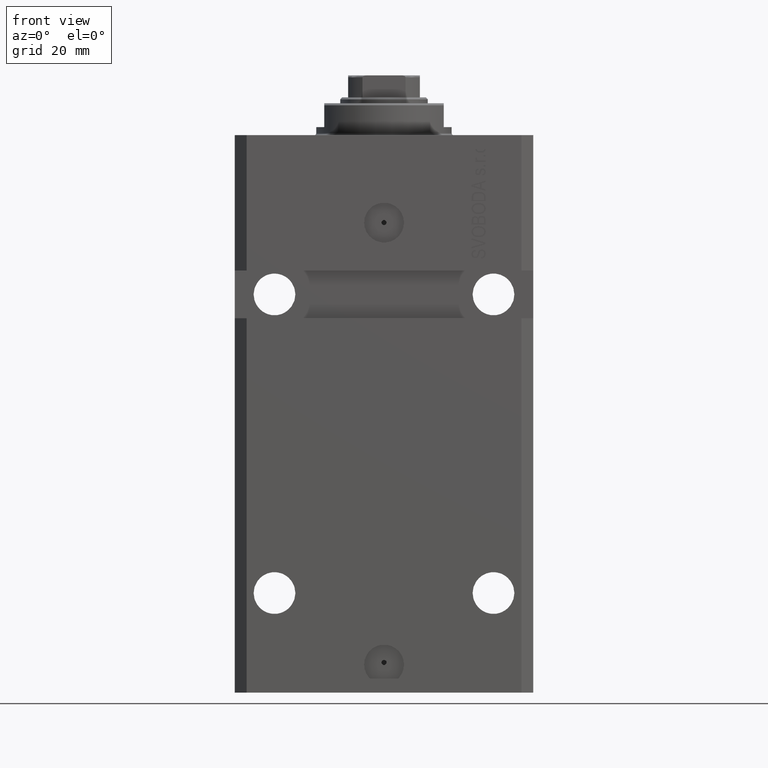
[diagram: clean part render]
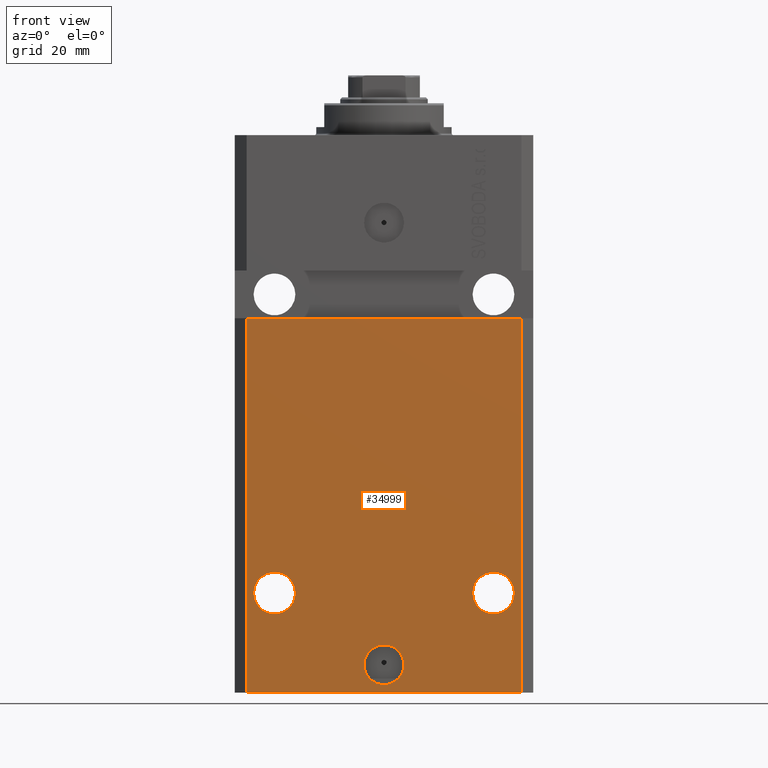
[diagram: same view with one face highlighted and labeled with its STEP entity id]
A machine part, front view. The second image highlights one B-rep face of the part: STEP entity #34999.
In plain terms, the highlighted planar face has unit normal (0, -1, 0).
Its self-contained STEP definition (entity closure, byte-faithful):
#111 = CARTESIAN_POINT ( 'NONE',  ( -34.49999999999998579, -27.49999999999999645, -140.0000000000000000 ) ) ;
#1057 = AXIS2_PLACEMENT_3D ( 'NONE', #40178, #32492, #29369 ) ;
#1148 = CARTESIAN_POINT ( 'NONE',  ( -37.50000000000000000, -27.50000000000000000, -46.00000000000000000 ) ) ;
#1710 = CARTESIAN_POINT ( 'NONE',  ( -32.75000000000001421, -27.50000000000000000, -114.9999999999999858 ) ) ;
#1973 = ORIENTED_EDGE ( 'NONE', *, *, #40157, .F. ) ;
#2005 = CARTESIAN_POINT ( 'NONE',  ( -34.49999999999998579, -27.49999999999999645, -140.0000000000000000 ) ) ;
#2021 = DIRECTION ( 'NONE',  ( 0.000000000000000000, 0.000000000000000000, 1.000000000000000000 ) ) ;
#2980 = VERTEX_POINT ( 'NONE', #28496 ) ;
#4014 = CIRCLE ( 'NONE', #42275, 5.000000000000006217 ) ;
#4164 = PLANE ( 'NONE',  #17685 ) ;
#4514 = DIRECTION ( 'NONE',  ( 1.000000000000000000, 0.000000000000000000, 0.000000000000000000 ) ) ;
#5545 = ORIENTED_EDGE ( 'NONE', *, *, #35936, .T. ) ;
#5588 = LINE ( 'NONE', #34812, #44801 ) ;
#7244 = AXIS2_PLACEMENT_3D ( 'NONE', #16963, #35641, #46211 ) ;
#7364 = DIRECTION ( 'NONE',  ( -1.000000000000000000, 0.000000000000000000, 0.000000000000000000 ) ) ;
#7464 = VERTEX_POINT ( 'NONE', #24071 ) ;
#7749 = FACE_BOUND ( 'NONE', #39373, .T. ) ;
#8972 = ORIENTED_EDGE ( 'NONE', *, *, #41030, .F. ) ;
#9198 = EDGE_CURVE ( 'NONE', #32117, #43630, #33531, .T. ) ;
#10006 = DIRECTION ( 'NONE',  ( 1.000000000000000000, 0.000000000000000000, 0.000000000000000000 ) ) ;
#10614 = EDGE_LOOP ( 'NONE', ( #1973, #24566 ) ) ;
#11483 = EDGE_CURVE ( 'NONE', #35458, #7464, #24493, .T. ) ;
#11514 = CARTESIAN_POINT ( 'NONE',  ( -34.49999999999998579, -27.49999999999999645, -140.0000000000000000 ) ) ;
#11586 = LINE ( 'NONE', #111, #37592 ) ;
#11703 = DIRECTION ( 'NONE',  ( 1.176083712526788232E-16, -1.000000000000000000, 0.000000000000000000 ) ) ;
#11825 = CARTESIAN_POINT ( 'NONE',  ( -34.49999999999998579, -27.49999999999999645, -140.0000000000000000 ) ) ;
#12240 = EDGE_CURVE ( 'NONE', #15080, #24653, #29109, .T. ) ;
#12388 = CIRCLE ( 'NONE', #39151, 5.000000000000006217 ) ;
#12616 = DIRECTION ( 'NONE',  ( 1.176083712526788232E-16, -1.000000000000000000, 0.000000000000000000 ) ) ;
#15080 = VERTEX_POINT ( 'NONE', #30430 ) ;
#15729 = CARTESIAN_POINT ( 'NONE',  ( -5.000000000000006217, -27.49999999999999645, -133.0000000000000000 ) ) ;
#15960 = CARTESIAN_POINT ( 'NONE',  ( 34.49999999999999289, -27.49999999999999645, -140.0000000000000000 ) ) ;
#16963 = CARTESIAN_POINT ( 'NONE',  ( -27.50000000000001776, -27.50000000000000000, -114.9999999999999858 ) ) ;
#17685 = AXIS2_PLACEMENT_3D ( 'NONE', #11825, #26179, #40106 ) ;
#18426 = AXIS2_PLACEMENT_3D ( 'NONE', #39488, #46448, #10006 ) ;
#18722 = CIRCLE ( 'NONE', #7244, 5.249999999999997335 ) ;
#19031 = VERTEX_POINT ( 'NONE', #33446 ) ;
#19356 = CIRCLE ( 'NONE', #1057, 5.249999999999997335 ) ;
#19912 = CARTESIAN_POINT ( 'NONE',  ( -34.49999999999998579, -27.50000000000000000, -46.00000000000000000 ) ) ;
#20609 = VECTOR ( 'NONE', #32597, 1000.000000000000000 ) ;
#20882 = EDGE_LOOP ( 'NONE', ( #8972, #29399, #5545, #42025 ) ) ;
#20928 = VECTOR ( 'NONE', #23395, 1000.000000000000000 ) ;
#22354 = FACE_OUTER_BOUND ( 'NONE', #20882, .T. ) ;
#22948 = CARTESIAN_POINT ( 'NONE',  ( 0.000000000000000000, -27.49999999999999645, -133.0000000000000000 ) ) ;
#23142 = CARTESIAN_POINT ( 'NONE',  ( 0.000000000000000000, -27.49999999999999645, -133.0000000000000000 ) ) ;
#23395 = DIRECTION ( 'NONE',  ( 1.000000000000000000, 9.251858538542972814E-17, 9.251858538542972814E-17 ) ) ;
#24071 = CARTESIAN_POINT ( 'NONE',  ( -22.25000000000002132, -27.50000000000000000, -114.9999999999999858 ) ) ;
#24493 = CIRCLE ( 'NONE', #34452, 5.249999999999997335 ) ;
#24566 = ORIENTED_EDGE ( 'NONE', *, *, #12240, .F. ) ;
#24653 = VERTEX_POINT ( 'NONE', #44042 ) ;
#25345 = ORIENTED_EDGE ( 'NONE', *, *, #36957, .F. ) ;
#25558 = CARTESIAN_POINT ( 'NONE',  ( -27.50000000000001776, -27.50000000000000000, -114.9999999999999858 ) ) ;
#26179 = DIRECTION ( 'NONE',  ( 0.000000000000000000, -1.000000000000000000, 0.000000000000000000 ) ) ;
#27127 = EDGE_CURVE ( 'NONE', #33816, #2980, #5588, .T. ) ;
#27435 = DIRECTION ( 'NONE',  ( 1.000000000000000000, 0.000000000000000000, 0.000000000000000000 ) ) ;
#27461 = ORIENTED_EDGE ( 'NONE', *, *, #28577, .F. ) ;
#28496 = CARTESIAN_POINT ( 'NONE',  ( 34.49999999999999289, -27.49999999999999289, -45.99999999999999289 ) ) ;
#28577 = EDGE_CURVE ( 'NONE', #7464, #35458, #18722, .T. ) ;
#29109 = CIRCLE ( 'NONE', #18426, 5.249999999999997335 ) ;
#29369 = DIRECTION ( 'NONE',  ( 1.000000000000000000, 0.000000000000000000, 0.000000000000000000 ) ) ;
#29399 = ORIENTED_EDGE ( 'NONE', *, *, #9198, .F. ) ;
#29728 = ORIENTED_EDGE ( 'NONE', *, *, #38161, .F. ) ;
#30430 = CARTESIAN_POINT ( 'NONE',  ( 22.25000000000002132, -27.49999999999999289, -114.9999999999999858 ) ) ;
#30699 = EDGE_LOOP ( 'NONE', ( #25345, #29728 ) ) ;
#32117 = VERTEX_POINT ( 'NONE', #2005 ) ;
#32492 = DIRECTION ( 'NONE',  ( 1.176083712526788232E-16, -1.000000000000000000, 0.000000000000000000 ) ) ;
#32597 = DIRECTION ( 'NONE',  ( 0.000000000000000000, 0.000000000000000000, 1.000000000000000000 ) ) ;
#33446 = CARTESIAN_POINT ( 'NONE',  ( 5.000000000000006217, -27.49999999999999645, -133.0000000000000000 ) ) ;
#33531 = LINE ( 'NONE', #11514, #20609 ) ;
#33766 = VERTEX_POINT ( 'NONE', #15729 ) ;
#33816 = VERTEX_POINT ( 'NONE', #15960 ) ;
#34452 = AXIS2_PLACEMENT_3D ( 'NONE', #25558, #40184, #7364 ) ;
#34812 = CARTESIAN_POINT ( 'NONE',  ( 34.49999999999999289, -27.49999999999999645, -140.0000000000000000 ) ) ;
#34999 = ADVANCED_FACE ( 'NONE', ( #44656, #40570, #7749, #22354 ), #4164, .T. ) ;
#35458 = VERTEX_POINT ( 'NONE', #1710 ) ;
#35641 = DIRECTION ( 'NONE',  ( 1.176083712526788232E-16, -1.000000000000000000, 0.000000000000000000 ) ) ;
#35936 = EDGE_CURVE ( 'NONE', #32117, #33816, #11586, .T. ) ;
#36957 = EDGE_CURVE ( 'NONE', #19031, #33766, #12388, .T. ) ;
#37592 = VECTOR ( 'NONE', #43953, 1000.000000000000000 ) ;
#38161 = EDGE_CURVE ( 'NONE', #33766, #19031, #4014, .T. ) ;
#39013 = ORIENTED_EDGE ( 'NONE', *, *, #11483, .F. ) ;
#39151 = AXIS2_PLACEMENT_3D ( 'NONE', #23142, #12616, #27435 ) ;
#39373 = EDGE_LOOP ( 'NONE', ( #27461, #39013 ) ) ;
#39488 = CARTESIAN_POINT ( 'NONE',  ( 27.50000000000001776, -27.49999999999999289, -114.9999999999999858 ) ) ;
#40106 = DIRECTION ( 'NONE',  ( 0.000000000000000000, -0.000000000000000000, -1.000000000000000000 ) ) ;
#40157 = EDGE_CURVE ( 'NONE', #24653, #15080, #19356, .T. ) ;
#40178 = CARTESIAN_POINT ( 'NONE',  ( 27.50000000000001776, -27.49999999999999289, -114.9999999999999858 ) ) ;
#40184 = DIRECTION ( 'NONE',  ( 1.176083712526788232E-16, -1.000000000000000000, 0.000000000000000000 ) ) ;
#40570 = FACE_BOUND ( 'NONE', #10614, .T. ) ;
#41030 = EDGE_CURVE ( 'NONE', #43630, #2980, #45213, .T. ) ;
#42025 = ORIENTED_EDGE ( 'NONE', *, *, #27127, .T. ) ;
#42275 = AXIS2_PLACEMENT_3D ( 'NONE', #22948, #11703, #4514 ) ;
#43630 = VERTEX_POINT ( 'NONE', #19912 ) ;
#43953 = DIRECTION ( 'NONE',  ( 1.000000000000000000, 0.000000000000000000, 0.000000000000000000 ) ) ;
#44042 = CARTESIAN_POINT ( 'NONE',  ( 32.75000000000001421, -27.49999999999999289, -114.9999999999999858 ) ) ;
#44656 = FACE_BOUND ( 'NONE', #30699, .T. ) ;
#44801 = VECTOR ( 'NONE', #2021, 1000.000000000000000 ) ;
#45213 = LINE ( 'NONE', #1148, #20928 ) ;
#46211 = DIRECTION ( 'NONE',  ( -1.000000000000000000, 0.000000000000000000, 0.000000000000000000 ) ) ;
#46448 = DIRECTION ( 'NONE',  ( 1.176083712526788232E-16, -1.000000000000000000, 0.000000000000000000 ) ) ;